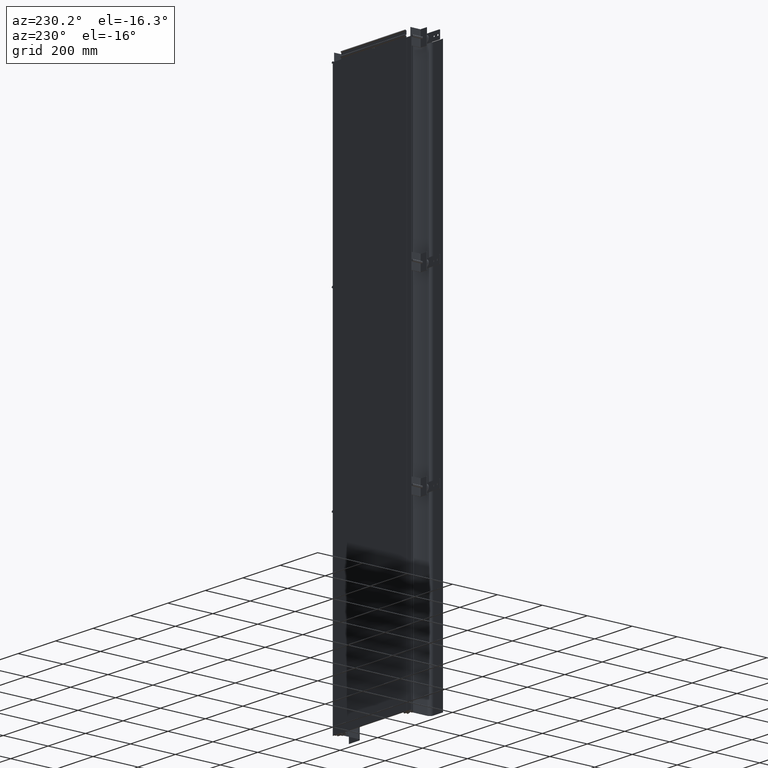
[diagram: clean part render]
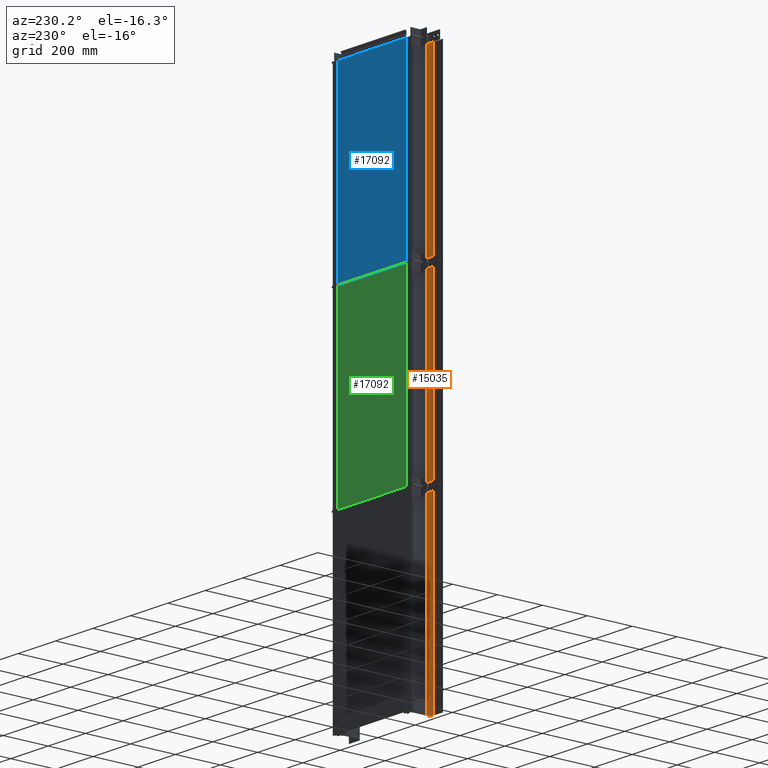
[diagram: same view with three faces highlighted in distinct colors, each labeled with its STEP entity id]
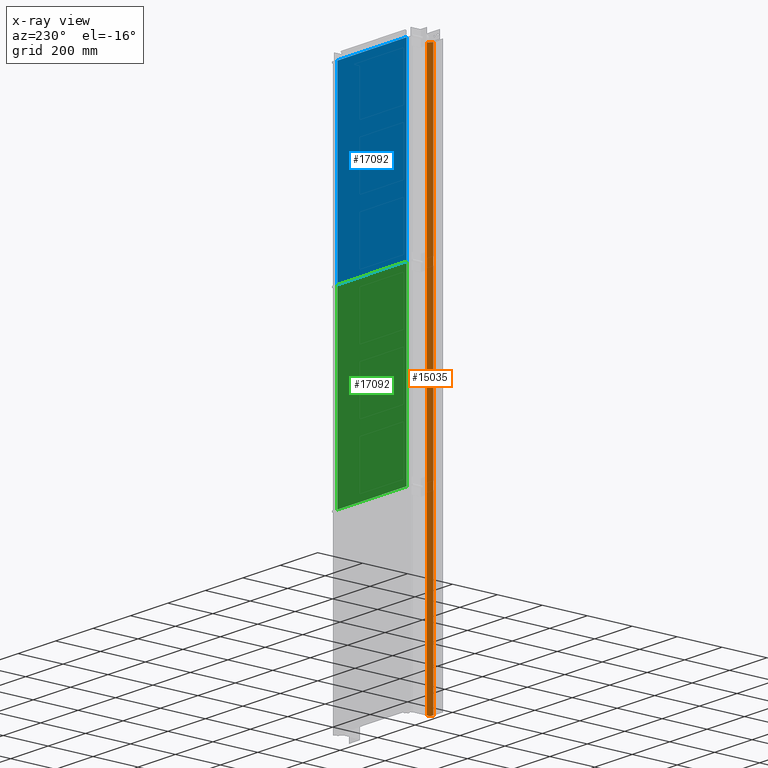
[diagram: x-ray of the same camera — body ghosted, the three highlighted faces saturated]
A machine part, auxiliary view with three faces highlighted in distinct colors.
The next image is the same camera in x-ray (body ghosted, the three faces saturated) — at least one of them is partly hidden behind the body in this view.
Their STEP definitions:

[orange] entity #15035 — the highlighted cylindrical surface (edge-blend (fillet) strip) has radius 15 mm, axis along (0, 0, -1).
#14869=DIRECTION('',(0.E0,0.E0,1.E0));
#14870=VECTOR('',#14869,2.4E3);
#14871=CARTESIAN_POINT('',(0.E0,-2.98E1,-1.2E3));
#14872=LINE('',#14871,#14870);
#14873=CARTESIAN_POINT('',(1.5E1,-2.98E1,-1.2E3));
#14874=DIRECTION('',(0.E0,0.E0,1.E0));
#14875=DIRECTION('',(-1.E0,0.E0,0.E0));
#14876=AXIS2_PLACEMENT_3D('',#14873,#14874,#14875);
#14899=CARTESIAN_POINT('',(1.5E1,-2.98E1,1.2E3));
#14900=DIRECTION('',(0.E0,0.E0,1.E0));
#14901=DIRECTION('',(-1.E0,0.E0,0.E0));
#14902=AXIS2_PLACEMENT_3D('',#14899,#14900,#14901);
#14925=DIRECTION('',(0.E0,0.E0,1.E0));
#14926=VECTOR('',#14925,2.4E3);
#14927=CARTESIAN_POINT('',(1.5E1,-4.48E1,-1.2E3));
#14928=LINE('',#14927,#14926);
#14981=CARTESIAN_POINT('',(0.E0,-2.98E1,1.2E3));
#14982=VERTEX_POINT('',#14981);
#14983=CARTESIAN_POINT('',(0.E0,-2.98E1,-1.2E3));
#14984=VERTEX_POINT('',#14983);
#14985=CARTESIAN_POINT('',(1.5E1,-4.48E1,-1.2E3));
#14986=VERTEX_POINT('',#14985);
#14989=CARTESIAN_POINT('',(1.5E1,-4.48E1,1.2E3));
#14990=VERTEX_POINT('',#14989);
#15021=CARTESIAN_POINT('',(1.5E1,-2.98E1,-1.2E3));
#15022=DIRECTION('',(0.E0,0.E0,1.E0));
#15023=DIRECTION('',(0.E0,-1.E0,0.E0));
#15024=AXIS2_PLACEMENT_3D('',#15021,#15022,#15023);
#15025=CYLINDRICAL_SURFACE('',#15024,1.5E1);
#15027=ORIENTED_EDGE('',*,*,#15026,.T.);
#15029=ORIENTED_EDGE('',*,*,#15028,.T.);
#15031=ORIENTED_EDGE('',*,*,#15030,.F.);
#15032=ORIENTED_EDGE('',*,*,#15010,.F.);
#15033=EDGE_LOOP('',(#15027,#15029,#15031,#15032));
#15034=FACE_OUTER_BOUND('',#15033,.F.);
#14877=CIRCLE('',#14876,1.5E1);
#14903=CIRCLE('',#14902,1.5E1);
#15010=EDGE_CURVE('',#14984,#14982,#14872,.T.);
#15026=EDGE_CURVE('',#14984,#14986,#14877,.T.);
#15028=EDGE_CURVE('',#14986,#14990,#14928,.T.);
#15030=EDGE_CURVE('',#14982,#14990,#14903,.T.);
#15035=ADVANCED_FACE('',(#15034),#15025,.F.);

[blue] entity #17092 — the highlighted planar face has unit normal (0, 1, 0).
#16977=DIRECTION('',(1.E0,0.E0,0.E0));
#16978=VECTOR('',#16977,3.695E2);
#16979=CARTESIAN_POINT('',(-1.8475E2,3.E0,4.E2));
#16980=LINE('',#16979,#16978);
#16981=DIRECTION('',(0.E0,0.E0,1.E0));
#16982=VECTOR('',#16981,8.E2);
#16983=CARTESIAN_POINT('',(-1.8475E2,3.E0,-4.E2));
#16984=LINE('',#16983,#16982);
#16985=DIRECTION('',(-1.E0,0.E0,0.E0));
#16986=VECTOR('',#16985,3.695E2);
#16987=CARTESIAN_POINT('',(1.8475E2,3.E0,-4.E2));
#16988=LINE('',#16987,#16986);
#16989=DIRECTION('',(0.E0,0.E0,-1.E0));
#16990=VECTOR('',#16989,8.E2);
#16991=CARTESIAN_POINT('',(1.8475E2,3.E0,4.E2));
#16992=LINE('',#16991,#16990);
#17001=CARTESIAN_POINT('',(-1.8475E2,3.E0,4.E2));
#17002=CARTESIAN_POINT('',(1.8475E2,3.E0,4.E2));
#17003=VERTEX_POINT('',#17001);
#17004=VERTEX_POINT('',#17002);
#17005=CARTESIAN_POINT('',(1.8475E2,3.E0,-4.E2));
#17006=VERTEX_POINT('',#17005);
#17007=CARTESIAN_POINT('',(-1.8475E2,3.E0,-4.E2));
#17008=VERTEX_POINT('',#17007);
#17081=CARTESIAN_POINT('',(0.E0,3.E0,0.E0));
#17082=DIRECTION('',(0.E0,1.E0,0.E0));
#17083=DIRECTION('',(1.E0,0.E0,0.E0));
#17084=AXIS2_PLACEMENT_3D('',#17081,#17082,#17083);
#17085=PLANE('',#17084);
#17086=ORIENTED_EDGE('',*,*,#17033,.F.);
#17087=ORIENTED_EDGE('',*,*,#17048,.F.);
#17088=ORIENTED_EDGE('',*,*,#17062,.F.);
#17089=ORIENTED_EDGE('',*,*,#17075,.F.);
#17090=EDGE_LOOP('',(#17086,#17087,#17088,#17089));
#17091=FACE_OUTER_BOUND('',#17090,.F.);
#17033=EDGE_CURVE('',#17003,#17004,#16980,.T.);
#17048=EDGE_CURVE('',#17008,#17003,#16984,.T.);
#17062=EDGE_CURVE('',#17006,#17008,#16988,.T.);
#17075=EDGE_CURVE('',#17004,#17006,#16992,.T.);
#17092=ADVANCED_FACE('',(#17091),#17085,.T.);

[green] entity #17092 — the highlighted planar face has unit normal (0, 1, 0).
#16977=DIRECTION('',(1.E0,0.E0,0.E0));
#16978=VECTOR('',#16977,3.695E2);
#16979=CARTESIAN_POINT('',(-1.8475E2,3.E0,4.E2));
#16980=LINE('',#16979,#16978);
#16981=DIRECTION('',(0.E0,0.E0,1.E0));
#16982=VECTOR('',#16981,8.E2);
#16983=CARTESIAN_POINT('',(-1.8475E2,3.E0,-4.E2));
#16984=LINE('',#16983,#16982);
#16985=DIRECTION('',(-1.E0,0.E0,0.E0));
#16986=VECTOR('',#16985,3.695E2);
#16987=CARTESIAN_POINT('',(1.8475E2,3.E0,-4.E2));
#16988=LINE('',#16987,#16986);
#16989=DIRECTION('',(0.E0,0.E0,-1.E0));
#16990=VECTOR('',#16989,8.E2);
#16991=CARTESIAN_POINT('',(1.8475E2,3.E0,4.E2));
#16992=LINE('',#16991,#16990);
#17001=CARTESIAN_POINT('',(-1.8475E2,3.E0,4.E2));
#17002=CARTESIAN_POINT('',(1.8475E2,3.E0,4.E2));
#17003=VERTEX_POINT('',#17001);
#17004=VERTEX_POINT('',#17002);
#17005=CARTESIAN_POINT('',(1.8475E2,3.E0,-4.E2));
#17006=VERTEX_POINT('',#17005);
#17007=CARTESIAN_POINT('',(-1.8475E2,3.E0,-4.E2));
#17008=VERTEX_POINT('',#17007);
#17081=CARTESIAN_POINT('',(0.E0,3.E0,0.E0));
#17082=DIRECTION('',(0.E0,1.E0,0.E0));
#17083=DIRECTION('',(1.E0,0.E0,0.E0));
#17084=AXIS2_PLACEMENT_3D('',#17081,#17082,#17083);
#17085=PLANE('',#17084);
#17086=ORIENTED_EDGE('',*,*,#17033,.F.);
#17087=ORIENTED_EDGE('',*,*,#17048,.F.);
#17088=ORIENTED_EDGE('',*,*,#17062,.F.);
#17089=ORIENTED_EDGE('',*,*,#17075,.F.);
#17090=EDGE_LOOP('',(#17086,#17087,#17088,#17089));
#17091=FACE_OUTER_BOUND('',#17090,.F.);
#17033=EDGE_CURVE('',#17003,#17004,#16980,.T.);
#17048=EDGE_CURVE('',#17008,#17003,#16984,.T.);
#17062=EDGE_CURVE('',#17006,#17008,#16988,.T.);
#17075=EDGE_CURVE('',#17004,#17006,#16992,.T.);
#17092=ADVANCED_FACE('',(#17091),#17085,.T.);